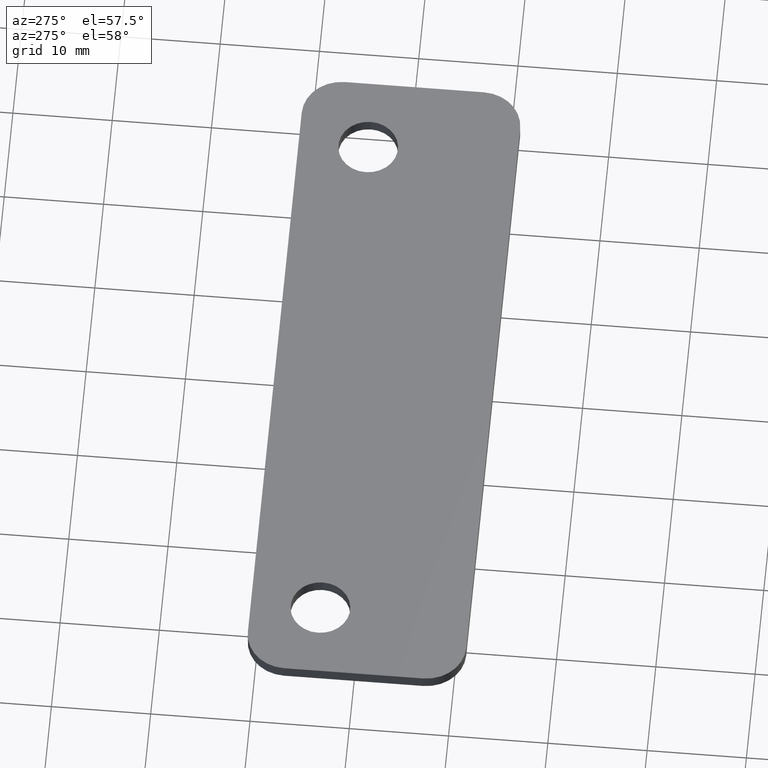
[diagram: clean part render]
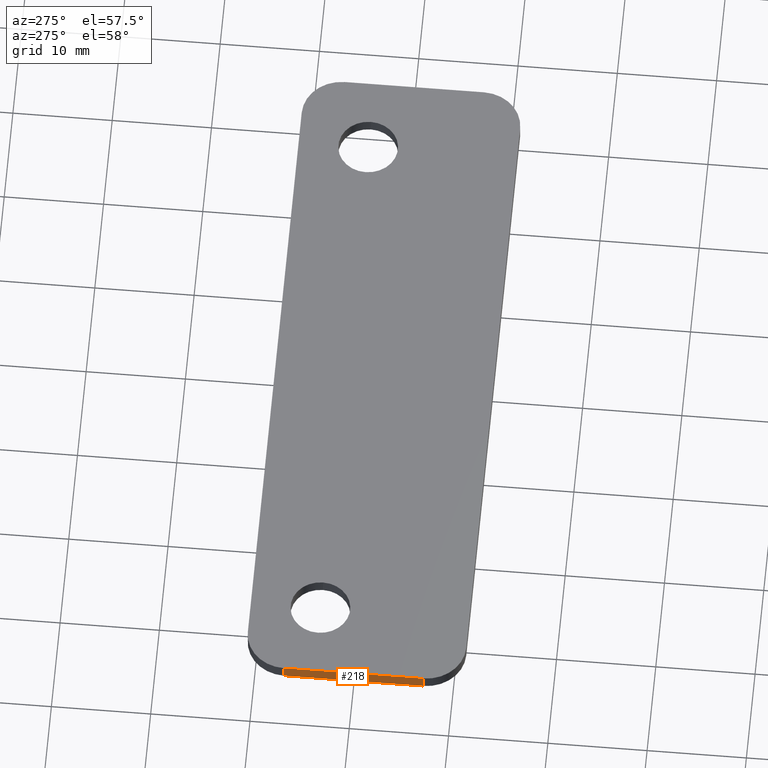
[diagram: same view with one face highlighted and labeled with its STEP entity id]
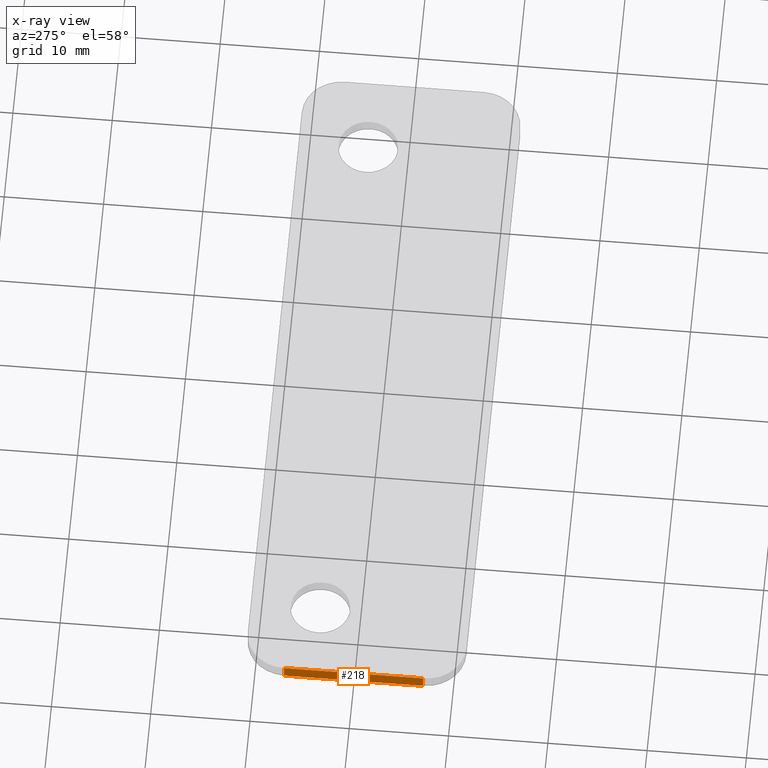
[diagram: x-ray of the same camera — body ghosted, the highlighted face saturated]
A machine part, auxiliary view. The second image highlights one B-rep face of the part: STEP entity #218.
The next image is the same camera in x-ray: the body ghosted, the highlighted face saturated — about 0% of this face is hidden behind the body in this view.
In plain terms, the highlighted planar face has unit normal (-1, -0, 0).
Its self-contained STEP definition (entity closure, byte-faithful):
#17=PLANE('',#242);
#30=LINE('',#358,#46);
#31=LINE('',#361,#47);
#32=LINE('',#363,#48);
#33=LINE('',#364,#49);
#46=VECTOR('',#294,1.4);
#47=VECTOR('',#297,14.);
#48=VECTOR('',#298,14.);
#49=VECTOR('',#299,1.4);
#66=FACE_OUTER_BOUND('',#80,.T.);
#80=EDGE_LOOP('',(#173,#174,#175,#176));
#115=VERTEX_POINT('',#354);
#116=VERTEX_POINT('',#356);
#117=VERTEX_POINT('',#360);
#118=VERTEX_POINT('',#362);
#140=EDGE_CURVE('',#115,#116,#30,.T.);
#141=EDGE_CURVE('',#115,#117,#31,.T.);
#142=EDGE_CURVE('',#118,#116,#32,.T.);
#143=EDGE_CURVE('',#117,#118,#33,.T.);
#173=ORIENTED_EDGE('',*,*,#141,.F.);
#174=ORIENTED_EDGE('',*,*,#140,.T.);
#175=ORIENTED_EDGE('',*,*,#142,.F.);
#176=ORIENTED_EDGE('',*,*,#143,.F.);
#218=ADVANCED_FACE('',(#66),#17,.T.);
#242=AXIS2_PLACEMENT_3D('',#359,#295,#296);
#294=DIRECTION('',(0.,0.,1.));
#295=DIRECTION('center_axis',(-1.,-6.34413156928661E-16,0.));
#296=DIRECTION('ref_axis',(7.105427357601E-16,-1.,0.));
#297=DIRECTION('',(-6.34413156928661E-16,1.,0.));
#298=DIRECTION('',(6.34413156928661E-16,-1.,0.));
#299=DIRECTION('',(0.,0.,1.));
#354=CARTESIAN_POINT('',(-35.,-7.,0.));
#356=CARTESIAN_POINT('',(-35.,-7.,1.4));
#358=CARTESIAN_POINT('',(-35.,-7.,0.));
#359=CARTESIAN_POINT('Origin',(-35.,7.,0.));
#360=CARTESIAN_POINT('',(-35.,7.,0.));
#361=CARTESIAN_POINT('',(-35.,-7.,0.));
#362=CARTESIAN_POINT('',(-35.,7.,1.4));
#363=CARTESIAN_POINT('',(-35.,-7.,1.4));
#364=CARTESIAN_POINT('',(-35.,7.,0.));